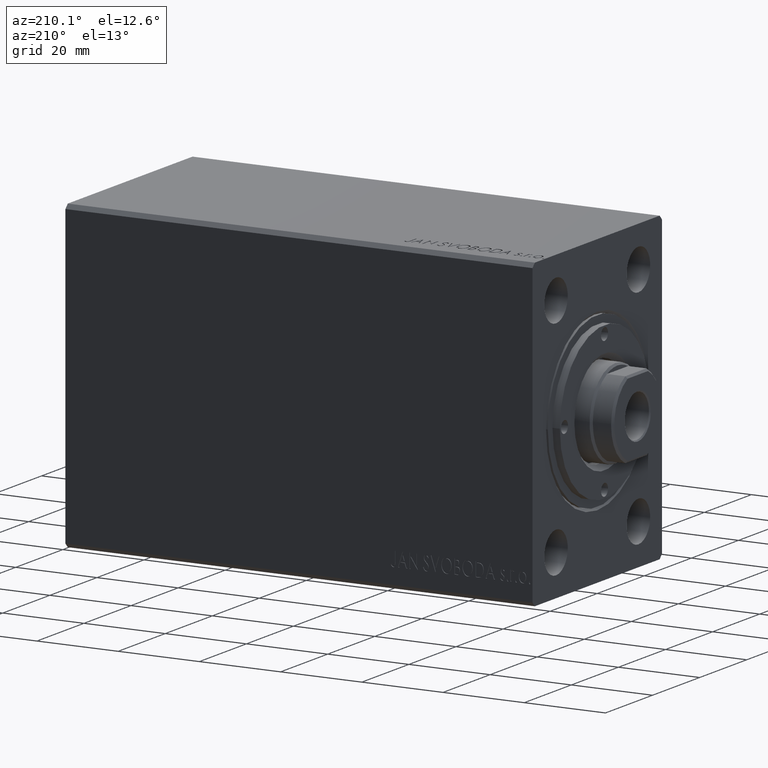
[diagram: clean part render]
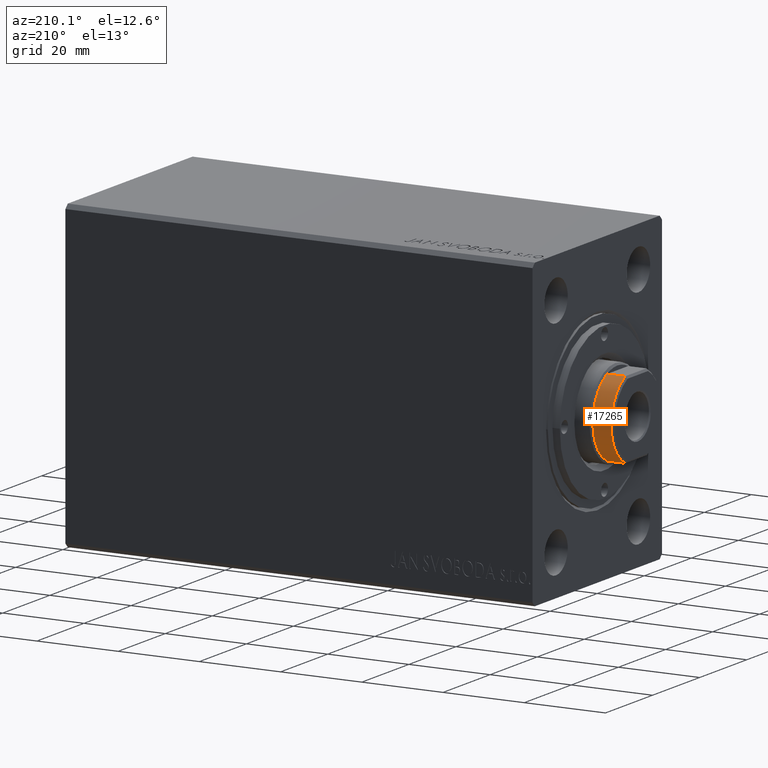
[diagram: same view with one face highlighted and labeled with its STEP entity id]
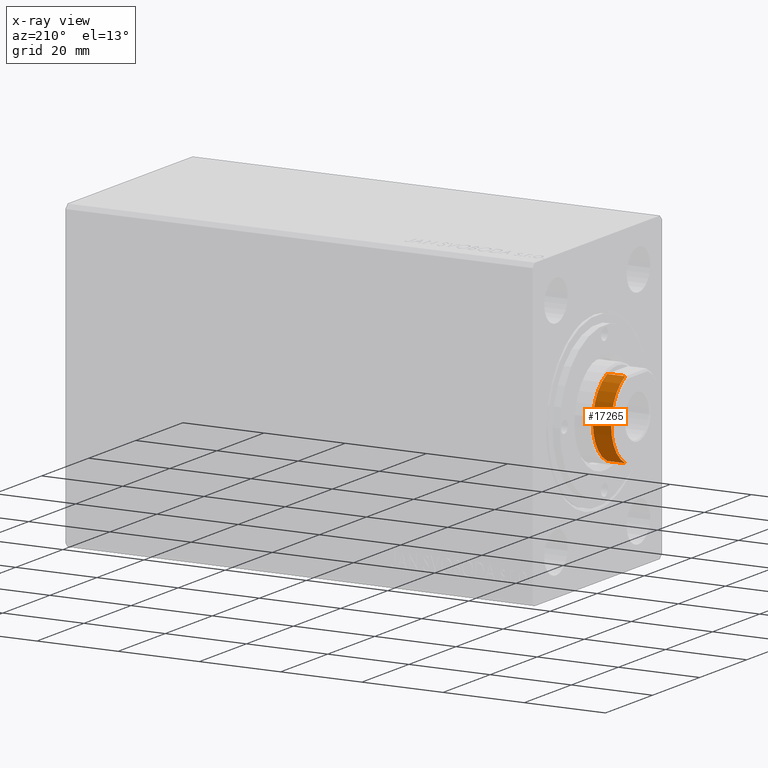
[diagram: x-ray of the same camera — body ghosted, the highlighted face saturated]
A machine part, auxiliary view. The second image highlights one B-rep face of the part: STEP entity #17265.
The next image is the same camera in x-ray: the body ghosted, the highlighted face saturated — about 0% of this face is hidden behind the body in this view.
In plain terms, the highlighted cylindrical surface (partial cylindrical patch) has radius 10.5 mm, axis along (1, -0, -0).
Its self-contained STEP definition (entity closure, byte-faithful):
#119 = DIRECTION ( 'NONE',  ( -0.000000000000000000, -0.000000000000000000, -1.000000000000000000 ) ) ;
#272 = CARTESIAN_POINT ( 'NONE',  ( -9.500000000000000000, 4.472135954999568064, 106.2000000000000028 ) ) ;
#467 = ORIENTED_EDGE ( 'NONE', *, *, #33832, .T. ) ;
#1936 = AXIS2_PLACEMENT_3D ( 'NONE', #30494, #13788, #13567 ) ;
#4015 = CYLINDRICAL_SURFACE ( 'NONE', #32721, 10.49999999999999467 ) ;
#4050 = DIRECTION ( 'NONE',  ( 0.000000000000000000, 0.000000000000000000, -1.000000000000000000 ) ) ;
#4460 = DIRECTION ( 'NONE',  ( -0.000000000000000000, -0.000000000000000000, -1.000000000000000000 ) ) ;
#6263 = EDGE_CURVE ( 'NONE', #41913, #10213, #15514, .T. ) ;
#7263 = CARTESIAN_POINT ( 'NONE',  ( 9.500000000000000000, 4.472135954999568952, 111.2000000000000028 ) ) ;
#10213 = VERTEX_POINT ( 'NONE', #272 ) ;
#10954 = DIRECTION ( 'NONE',  ( -1.000000000000000000, 0.000000000000000000, 0.000000000000000000 ) ) ;
#13567 = DIRECTION ( 'NONE',  ( 1.000000000000000000, 0.000000000000000000, 0.000000000000000000 ) ) ;
#13788 = DIRECTION ( 'NONE',  ( 0.000000000000000000, 0.000000000000000000, 1.000000000000000000 ) ) ;
#13790 = VECTOR ( 'NONE', #119, 1000.000000000000000 ) ;
#14395 = ORIENTED_EDGE ( 'NONE', *, *, #31762, .T. ) ;
#14973 = CARTESIAN_POINT ( 'NONE',  ( 9.500000000000000000, 4.472135954999568952, 110.6999999999999886 ) ) ;
#15006 = CARTESIAN_POINT ( 'NONE',  ( 0.000000000000000000, 0.000000000000000000, 110.6999999999999886 ) ) ;
#15514 = CIRCLE ( 'NONE', #1936, 10.49999999999999467 ) ;
#17265 = ADVANCED_FACE ( 'NONE', ( #27467 ), #4015, .T. ) ;
#17322 = VERTEX_POINT ( 'NONE', #41286 ) ;
#18547 = CARTESIAN_POINT ( 'NONE',  ( -9.500000000000000000, 4.472135954999568952, 111.2000000000000028 ) ) ;
#22478 = VECTOR ( 'NONE', #32130, 1000.000000000000000 ) ;
#24058 = CARTESIAN_POINT ( 'NONE',  ( 9.500000000000000000, 4.472135954999568952, 106.2000000000000028 ) ) ;
#27467 = FACE_OUTER_BOUND ( 'NONE', #39578, .T. ) ;
#29479 = CIRCLE ( 'NONE', #35168, 10.49999999999999467 ) ;
#30494 = CARTESIAN_POINT ( 'NONE',  ( 0.000000000000000000, 0.000000000000000000, 106.2000000000000028 ) ) ;
#31762 = EDGE_CURVE ( 'NONE', #38631, #41913, #40968, .T. ) ;
#32130 = DIRECTION ( 'NONE',  ( -0.000000000000000000, -0.000000000000000000, -1.000000000000000000 ) ) ;
#32721 = AXIS2_PLACEMENT_3D ( 'NONE', #37941, #4460, #10954 ) ;
#33832 = EDGE_CURVE ( 'NONE', #17322, #38631, #29479, .T. ) ;
#35168 = AXIS2_PLACEMENT_3D ( 'NONE', #15006, #4050, #43524 ) ;
#35210 = ORIENTED_EDGE ( 'NONE', *, *, #6263, .T. ) ;
#36324 = ORIENTED_EDGE ( 'NONE', *, *, #38710, .F. ) ;
#37941 = CARTESIAN_POINT ( 'NONE',  ( 0.000000000000000000, 0.000000000000000000, 111.2000000000000028 ) ) ;
#38631 = VERTEX_POINT ( 'NONE', #14973 ) ;
#38710 = EDGE_CURVE ( 'NONE', #17322, #10213, #41128, .T. ) ;
#39578 = EDGE_LOOP ( 'NONE', ( #36324, #467, #14395, #35210 ) ) ;
#40968 = LINE ( 'NONE', #7263, #13790 ) ;
#41128 = LINE ( 'NONE', #18547, #22478 ) ;
#41286 = CARTESIAN_POINT ( 'NONE',  ( -9.500000000000000000, 4.472135954999568952, 110.6999999999999886 ) ) ;
#41913 = VERTEX_POINT ( 'NONE', #24058 ) ;
#43524 = DIRECTION ( 'NONE',  ( 1.000000000000000000, 0.000000000000000000, 0.000000000000000000 ) ) ;